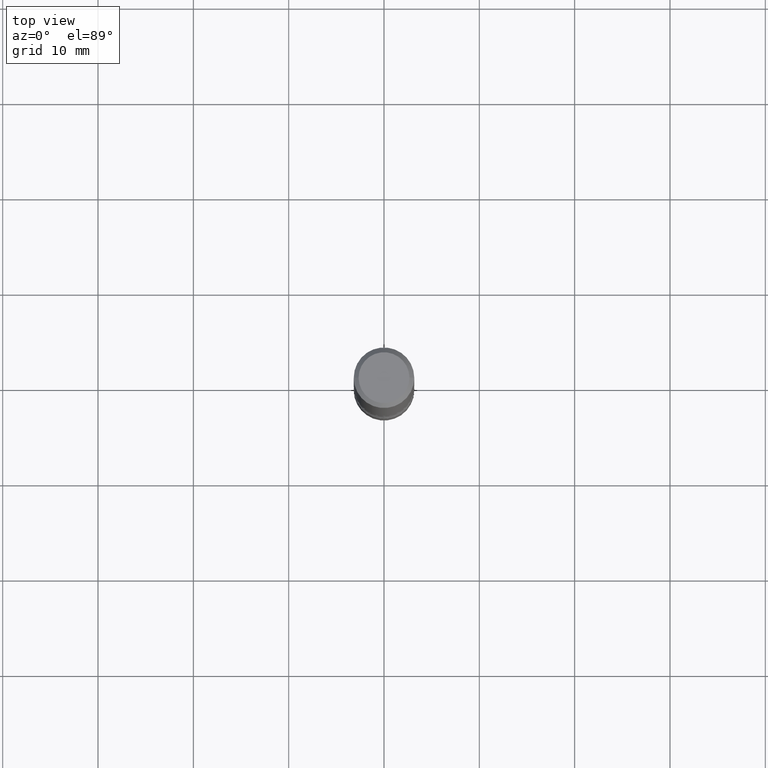
[diagram: clean part render]
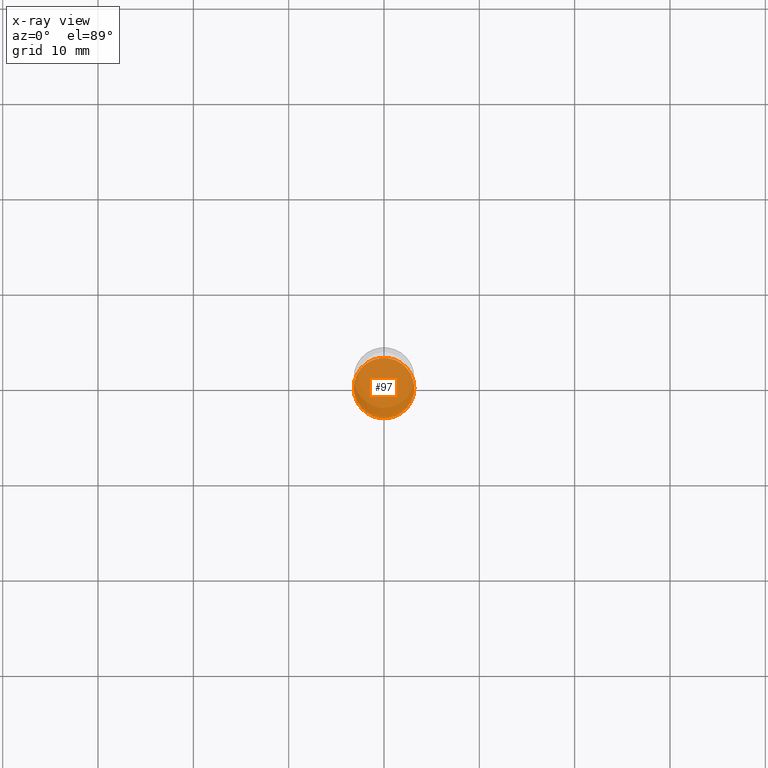
[diagram: x-ray — body ghosted, one internal face saturated and labeled with its STEP entity id]
A machine part, top view, then the same camera in x-ray: the body is ghosted and one INTERNAL B-rep face — a face not visible from any outside direction — is saturated and labeled: STEP entity #97.
In plain terms, the highlighted planar face has unit normal (0, -0, -1).
Its self-contained STEP definition (entity closure, byte-faithful):
#5 = CARTESIAN_POINT ( 'NONE',  ( -0.1250000000000000555, -8.687209152077199707E-15, -2.499999999999999556 ) ) ;
#32 = AXIS2_PLACEMENT_3D ( 'NONE', #416, #153, #462 ) ;
#55 = FACE_OUTER_BOUND ( 'NONE', #346, .T. ) ;
#57 = CARTESIAN_POINT ( 'NONE',  ( 6.113672015462840371E-29, -8.728703347107863365E-15, -2.499999999999999556 ) ) ;
#97 = ADVANCED_FACE ( 'NONE', ( #55 ), #138, .F. ) ;
#121 = AXIS2_PLACEMENT_3D ( 'NONE', #307, #441, #262 ) ;
#138 = PLANE ( 'NONE',  #121 ) ;
#153 = DIRECTION ( 'NONE',  ( -2.445468806185136597E-29, 3.491481338843145583E-15, 1.000000000000000000 ) ) ;
#217 = ORIENTED_EDGE ( 'NONE', *, *, #544, .T. ) ;
#227 = DIRECTION ( 'NONE',  ( -2.445468806185136597E-29, 3.491481338843145583E-15, 1.000000000000000000 ) ) ;
#241 = AXIS2_PLACEMENT_3D ( 'NONE', #57, #227, #393 ) ;
#253 = CARTESIAN_POINT ( 'NONE',  ( 0.1250000000000000555, -9.601573681818646704E-15, -2.499999999999999556 ) ) ;
#262 = DIRECTION ( 'NONE',  ( -1.000000000000000000, 6.982962677686265922E-15, -4.876176775795935793E-29 ) ) ;
#272 = ORIENTED_EDGE ( 'NONE', *, *, #328, .T. ) ;
#307 = CARTESIAN_POINT ( 'NONE',  ( 1.374422904781070061E-28, 2.198688627549184381E-15, -2.500000000000000000 ) ) ;
#328 = EDGE_CURVE ( 'NONE', #396, #370, #389, .T. ) ;
#346 = EDGE_LOOP ( 'NONE', ( #217, #272 ) ) ;
#370 = VERTEX_POINT ( 'NONE', #253 ) ;
#389 = CIRCLE ( 'NONE', #32, 0.1250000000000000555 ) ;
#393 = DIRECTION ( 'NONE',  ( 1.000000000000000000, -6.982962677686267499E-15, 0.000000000000000000 ) ) ;
#396 = VERTEX_POINT ( 'NONE', #5 ) ;
#416 = CARTESIAN_POINT ( 'NONE',  ( 6.113672015462840371E-29, -8.728703347107863365E-15, -2.499999999999999556 ) ) ;
#441 = DIRECTION ( 'NONE',  ( 2.438088387897960049E-29, -3.491481338843145188E-15, -1.000000000000000000 ) ) ;
#462 = DIRECTION ( 'NONE',  ( 1.000000000000000000, -6.982962677686267499E-15, 0.000000000000000000 ) ) ;
#498 = CIRCLE ( 'NONE', #241, 0.1250000000000000555 ) ;
#544 = EDGE_CURVE ( 'NONE', #370, #396, #498, .T. ) ;